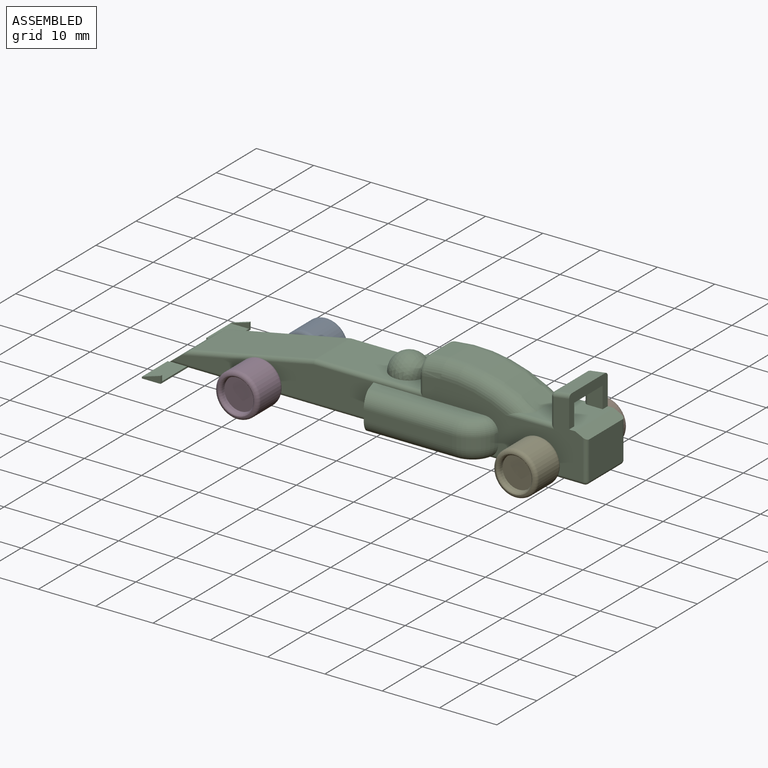
[diagram: assembled view]
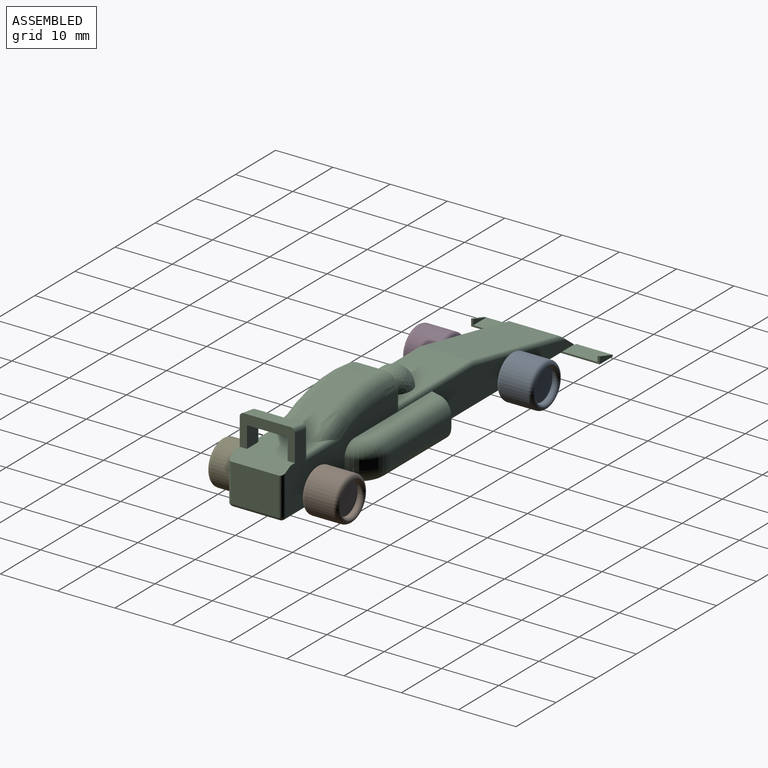
[diagram: assembled view, second angle]
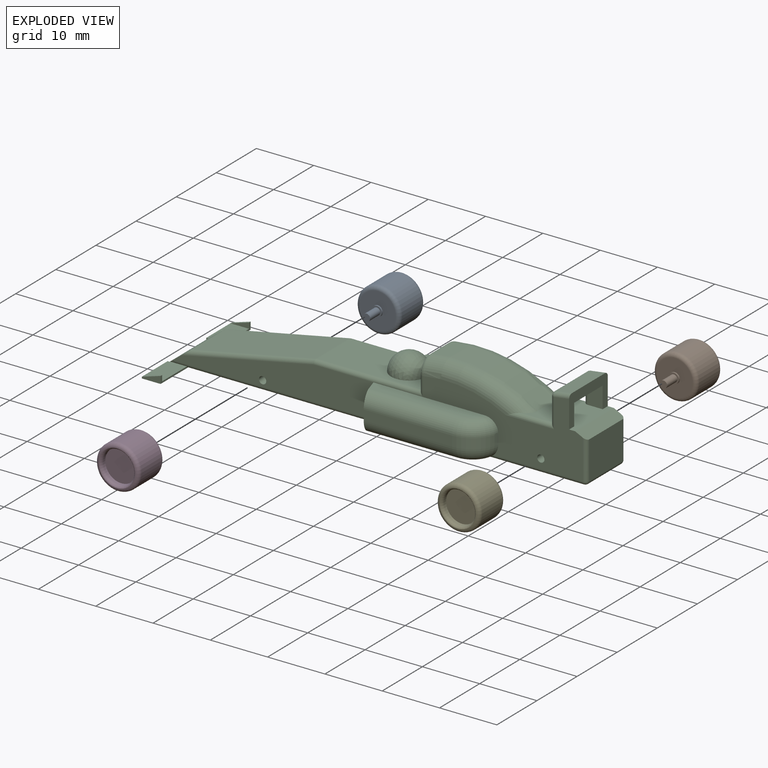
[diagram: exploded view]
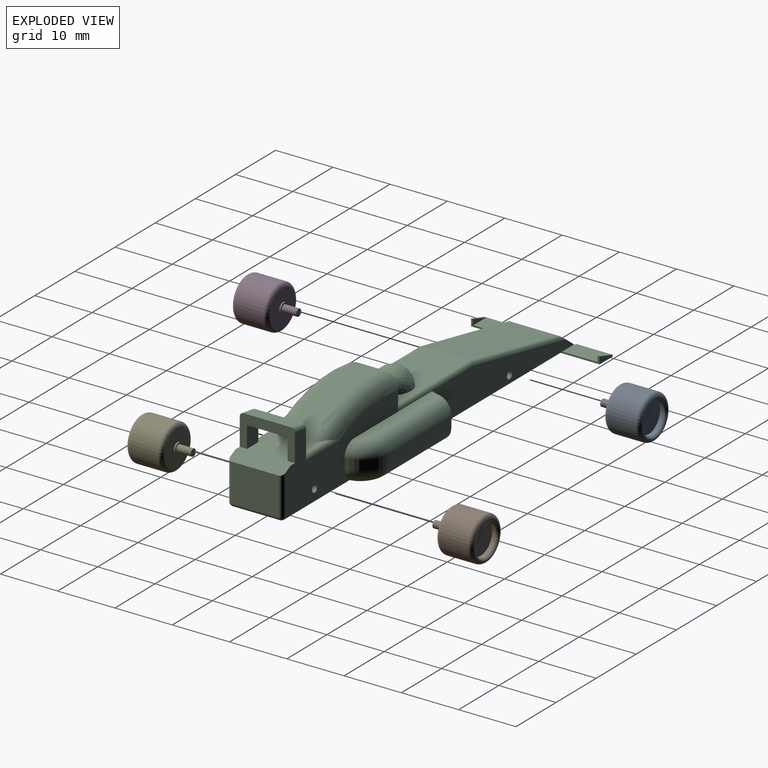
[diagram: exploded view, second angle]
ASSEMBLY  parts=5 mates=8
PART A: 11 faces, bbox 8.2x8.2x9.2 mm
  f0: cylinder r=3.81mm len=7.62mm, axis (0,0,-1), area 119.2mm2, adj f2,f3
  f1: plane 6.25x6.25mm, normal (0,0,-1), area 28.2mm2, adj f2,f4
  f2: torus R=3.12mm, axis (0,0,1), area 24.1mm2, adj f0,f1
  f3: torus R=3.12mm, axis (0,0,1), area 24.1mm2, adj f0,f10
  f4: cylinder r=0.89mm len=1.78mm, axis (0,0,1), area 1.4mm2, adj f1,f5
  f5: plane 1.78x1.78mm, normal (0,0,-1), area 1.3mm2, adj f4,f7
  f6: plane 1.24x1.24mm, normal (0,0,-1), area 1.2mm2, adj f7
  f7: cylinder r=0.62mm len=2.54mm, axis (0,0,1), area 9.9mm2, adj f5,f6
  f8: cylinder r=2.8mm len=5.6mm, axis (0,0,1), area 9mm2, adj f9,f10
  f9: plane 5.6x5.6mm, normal (0,0,1), area 24.7mm2, adj f8
  f10: torus R=3.49mm, axis (0,0,1), area 12.7mm2, adj f3,f8
PART B: same geometry as A
PART C: 89 faces, bbox 73.3x22.6x14.9 mm
  f0: plane 27.97x12.41mm, normal (0,-1,0), area 158.8mm2, adj f9,f10,f16,f17,f35,f45,f58,f60
  f1: plane 27.96x12.41mm, normal (0,1,0), area 158.7mm2, adj f9,f10,f15,f17,f36,f41,f47,f49
  f2: plane 6.15x3.27mm, normal (0,0,1), area 20mm2, adj f6,f30,f31,f32,f34,f74
  f3: plane 35.05x5.86mm, normal (0,-1,0), area 142.2mm2, adj f6,f37,f38,f57,f74,f75
  f4: plane 35.05x5.86mm, normal (0,1,0), area 142.2mm2, adj f6,f39,f40,f46,f73,f75
  f5: plane 21.82x8.27mm, normal (-0.2,0,0.98), area 184mm2, adj f6,f13,f38,f40
  f6: plane 9.67x3.7mm, normal (-0.61,0,0.79), area 44.2mm2, adj f2,f3,f4,f5,f7,f24,f26,f31
  f7: plane 72.45x22.44mm, normal (0,0,-1), area 736.7mm2, adj f6,f22,f23,f25,f29,f30,f32,f46
  f8: plane 8.28x6.57mm, normal (1,0,0), area 54.4mm2, adj f9,f35,f36,f70
  f9: plane 9.78x2.13mm, normal (0.45,0,0.89), area 21.2mm2, adj f0,f1,f8,f10,f35,f36
  f10: plane 9.85x9.64mm, normal (0,0,1), area 68.8mm2, adj f0,f1,f9,f11,f15,f16,f17,f19
  f11: cylinder r=24.93mm len=18.31mm, axis (0,1,0), area 87.8mm2, adj f10,f15,f16,f43
  f12: plane 8.27x4.5mm, normal (-1,0,0), area 35.7mm2, adj f13,f41,f42,f43,f44,f45
  f13: plane 18.38x8.27mm, normal (0,0,1), area 120.3mm2, adj f5,f12,f14,f37,f39
  f14: sphere r=3.17mm, area 63.3mm2, adj f13
  f15: torus R=22.39mm, axis (0,-1,0), area 70mm2, adj f1,f10,f11,f42,f80
  f16: torus R=22.39mm, axis (0,-1,0), area 70mm2, adj f0,f10,f11,f44,f79
  f17: plane 9.68x5.51mm, normal (1,0,0), area 26mm2, adj f0,f1,f10,f18,f19,f20,f21,f81
  f18: plane 8.27x2.7mm, normal (-0.14,0,0.99), area 22.5mm2, adj f17,f81,f83,f85
  f19: plane 3.73x2.61mm, normal (0,-1,0), area 9.7mm2, adj f10,f17,f21,f86,f87
  f20: plane 3.73x2.61mm, normal (0,1,0), area 9.7mm2, adj f10,f17,f21,f86,f88
  f21: plane 7.1x2.6mm, normal (0,0,-1), area 18.5mm2, adj f17,f19,f20,f86
  f22: plane 3.27x1.26mm, normal (0,1,0), area 2.5mm2, adj f7,f23,f25,f27
  f23: plane 6.4x0.28mm, normal (-1,0,0), area 1.8mm2, adj f7,f22,f24,f26,f27
  f24: plane 0.36x0.28mm, normal (0,-1,0), area 0.1mm2, adj f6,f23,f26
  f25: plane 7.09x1.26mm, normal (1,0,0), area 2.2mm2, adj f7,f22,f26,f27,f28,f73
  f26: plane 6.15x3.27mm, normal (0,0,1), area 20mm2, adj f6,f23,f24,f25,f28,f73
  f27: plane 3.27x0.98mm, normal (-0.29,0,0.96), area 1.3mm2, adj f22,f23,f25,f28
  f28: plane 3.27x0.98mm, normal (0,-1,0), area 1.6mm2, adj f25,f26,f27
  f29: plane 3.27x1.26mm, normal (0,-1,0), area 2.5mm2, adj f7,f30,f32,f33
  f30: plane 7.09x1.26mm, normal (1,0,0), area 2.2mm2, adj f2,f7,f29,f33,f34,f74
  f31: plane 0.36x0.28mm, normal (0,1,0), area 0.1mm2, adj f2,f6,f32
  f32: plane 6.4x0.28mm, normal (-1,0,0), area 1.8mm2, adj f2,f7,f29,f31,f33
  f33: plane 3.27x0.98mm, normal (-0.29,0,0.96), area 1.3mm2, adj f29,f30,f32,f34
  f34: plane 3.27x0.98mm, normal (0,1,0), area 1.6mm2, adj f2,f30,f33
  f35: cylinder r=0.67mm len=6.91mm, axis (0,0,-1), area 7.1mm2, adj f0,f8,f9,f69
  f36: cylinder r=0.69mm len=6.91mm, axis (0,0,1), area 7.3mm2, adj f1,f8,f9,f71
  f37: cylinder r=0.69mm len=19.07mm, axis (1,0,0), area 20mm2, adj f3,f13,f38,f45,f58
  f38: cylinder r=0.69mm len=23.32mm, axis (0.98,0,0.2), area 24.5mm2, adj f3,f5,f6,f37
  f39: cylinder r=0.69mm len=19.07mm, axis (-1,0,0), area 20mm2, adj f4,f13,f40,f41,f47
  f40: cylinder r=0.69mm len=23.32mm, axis (-0.98,0,-0.2), area 24.5mm2, adj f4,f5,f6,f39
  f41: cylinder r=0.69mm len=3.31mm, axis (0,0,-1), area 3.1mm2, adj f1,f12,f39,f42
  f42: bspline ~3.14x2.69mm, area 3.6mm2, adj f12,f15,f41,f43
  f43: cylinder r=0.69mm len=4.56mm, axis (0,1,0), area 4.4mm2, adj f11,f12,f42,f44
  f44: bspline ~3.14x3.11mm, area 3.6mm2, adj f12,f16,f43,f45
  f45: cylinder r=0.69mm len=3.31mm, axis (0,0,1), area 3.1mm2, adj f0,f12,f37,f44
  f46: plane 6.64x5.09mm, normal (-0.96,0.29,0), area 22.9mm2, adj f4,f7,f47,f48,f50,f52,f54,f55
  f47: plane 19.43x2.03mm, normal (0,0,1), area 37.4mm2, adj f1,f39,f46,f50,f51
  f48: plane 15.42x1.72mm, normal (0,1,0), area 26.6mm2, adj f46,f49,f50,f52
  f49: cylinder r=5.08mm len=5.02mm, axis (0,0,1), area 12.4mm2, adj f1,f48,f51,f53
  f50: cylinder r=2.29mm len=16.12mm, axis (-1,0,0), area 56.3mm2, adj f46,f47,f48,f51
  f51: torus R=2.79mm, axis (0,0,-1), area 21.2mm2, adj f1,f47,f49,f50
  f52: cylinder r=2.54mm len=16.2mm, axis (-1,0,0), area 62.7mm2, adj f7,f46,f48,f53
  f53: torus R=2.54mm, axis (0,0,1), area 23.5mm2, adj f1,f7,f49,f52,f72
  f54: cylinder r=1.62mm len=3.55mm, axis (-0.96,0.29,0), area 7.8mm2, adj f46,f55,f56
  f55: plane 3.55x2.41mm, normal (0,0,1), area 4.9mm2, adj f46,f54,f56
  f56: plane 3.1x1.62mm, normal (-0.96,0.29,0), area 4.1mm2, adj f54,f55
  f57: plane 6.64x5.09mm, normal (-0.96,-0.29,0), area 22.9mm2, adj f3,f7,f58,f59,f61,f63,f65,f66
  f58: plane 19.43x2.03mm, normal (0,0,1), area 37.4mm2, adj f0,f37,f57,f61,f62
  f59: plane 15.42x1.72mm, normal (0,-1,0), area 26.6mm2, adj f57,f60,f61,f63
  f60: cylinder r=5.08mm len=5.02mm, axis (0,0,-1), area 12.4mm2, adj f0,f59,f62,f64
  f61: cylinder r=2.29mm len=16.12mm, axis (1,0,0), area 56.3mm2, adj f57,f58,f59,f62
  f62: torus R=2.79mm, axis (0,0,1), area 21.2mm2, adj f0,f58,f60,f61
  f63: cylinder r=2.54mm len=16.2mm, axis (-1,0,0), area 62.7mm2, adj f7,f57,f59,f64
  f64: torus R=2.54mm, axis (0,0,1), area 23.5mm2, adj f0,f7,f60,f63,f68
  f65: cylinder r=1.62mm len=3.55mm, axis (-0.96,-0.29,0), area 7.8mm2, adj f57,f66,f67
  f66: plane 3.55x2.41mm, normal (0,0,1), area 4.9mm2, adj f57,f65,f67
  f67: plane 3.1x1.62mm, normal (-0.96,-0.29,0), area 4.1mm2, adj f65,f66
  f68: cylinder r=0.69mm len=17.24mm, axis (-1,0,0), area 17.7mm2, adj f0,f7,f64,f69
  f69: bspline ~0.73x0.69mm, area 0.7mm2, adj f35,f68,f70
  f70: cylinder r=0.69mm len=8.28mm, axis (0,-1,0), area 8.9mm2, adj f7,f8,f69,f71
  f71: sphere r=0.69mm, area 0.7mm2, adj f36,f70,f72
  f72: cylinder r=0.69mm len=17.23mm, axis (1,0,0), area 17.7mm2, adj f1,f7,f53,f71
  f73: cylinder r=0.69mm len=35.58mm, axis (1,0,0), area 36.2mm2, adj f4,f6,f7,f25,f26,f46
  f74: cylinder r=0.69mm len=35.58mm, axis (-1,0,0), area 36.2mm2, adj f2,f3,f6,f7,f30,f57
  f75: cylinder r=0.64mm len=9.64mm, axis (0,-1,0), area 38.5mm2, adj f3,f4
  f76: cylinder r=0.64mm len=9.64mm, axis (0,-1,0), area 38.5mm2, adj f0,f1
  f77: cylinder r=0.69mm len=5.09mm, axis (0,0,-1), area 5mm2, adj f0,f79,f82,f88
  f78: cylinder r=0.69mm len=5.09mm, axis (0,0,1), area 5mm2, adj f1,f80,f84,f87
  f79: cylinder r=0.69mm len=8.45mm, axis (1,0,0), area 7.4mm2, adj f0,f10,f16,f77
  f80: cylinder r=0.69mm len=8.45mm, axis (-1,0,0), area 7.4mm2, adj f1,f10,f15,f78
  f81: cylinder r=0.69mm len=2.79mm, axis (-0.99,0,-0.14), area 2.9mm2, adj f0,f17,f18,f82
  f82: sphere r=0.69mm, area 0.7mm2, adj f77,f81,f83
  f83: cylinder r=0.69mm len=8.27mm, axis (0,1,0), area 8.1mm2, adj f18,f82,f84,f86,f87,f88
  f84: sphere r=0.69mm, area 0.7mm2, adj f78,f83,f85
  f85: cylinder r=0.69mm len=2.79mm, axis (0.99,0,0.14), area 2.9mm2, adj f1,f17,f18,f84
  f86: cylinder r=0.69mm len=8.27mm, axis (0,1,0), area 8.1mm2, adj f19,f20,f21,f83,f87,f88
  f87: cylinder r=0.69mm len=4.41mm, axis (0,0,-1), area 3.9mm2, adj f10,f19,f78,f83,f86
  f88: cylinder r=0.69mm len=4.41mm, axis (0,0,-1), area 3.9mm2, adj f10,f20,f77,f83,f86
PART D: same geometry as A
PART E: same geometry as A
PLACE A rot(axis=(-1,0,0),90deg) t=(-58.15,7.41,-17.96)mm
PLACE B rot(axis=(-1,0,0),90deg) t=(-9.6,7.41,-17.33)mm
PLACE C t=(-30.86,7.16,-19.67)mm
PLACE D rot(axis=(1,0,0),90deg) t=(-58.15,-2.74,-17.96)mm
PLACE E rot(axis=(1,0,0),90deg) t=(-9.6,-2.74,-17.33)mm
MATE cylindrical D.f7 <-> C.f75  axis (0,-1,0) through (-58.15,0.06,-17.96)mm
MATE cylindrical A.f7 <-> C.f75  axis (0,1,0) through (-58.15,4.62,-17.96)mm
MATE slider B.f7 <-> C.f76  axis (0,1,0) through (-9.6,4.62,-17.33)mm
MATE cylindrical E.f7 <-> C.f76  axis (0,-1,0) through (-9.6,-1.21,-17.33)mm
MATE planar C.f3 <-> D.f4  axis (0,-1,0) through (-52.22,-2.48,-16.57)mm
MATE planar A.f4 <-> C.f4  axis (0,-1,0) through (-58.15,7.16,-17.96)mm
MATE planar B.f4 <-> C.f1  axis (0,-1,0) through (-9.6,7.16,-17.33)mm
MATE planar E.f4 <-> C.f0  axis (0,1,0) through (-9.6,-2.48,-17.33)mm
